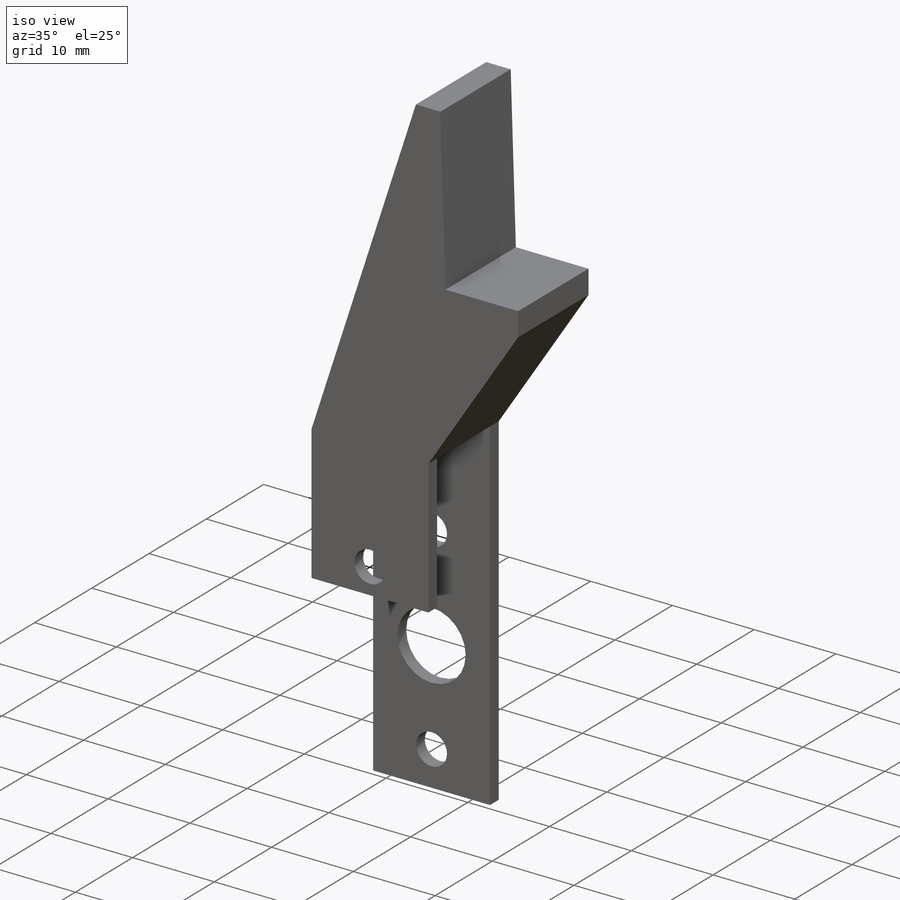
[diagram: iso view]
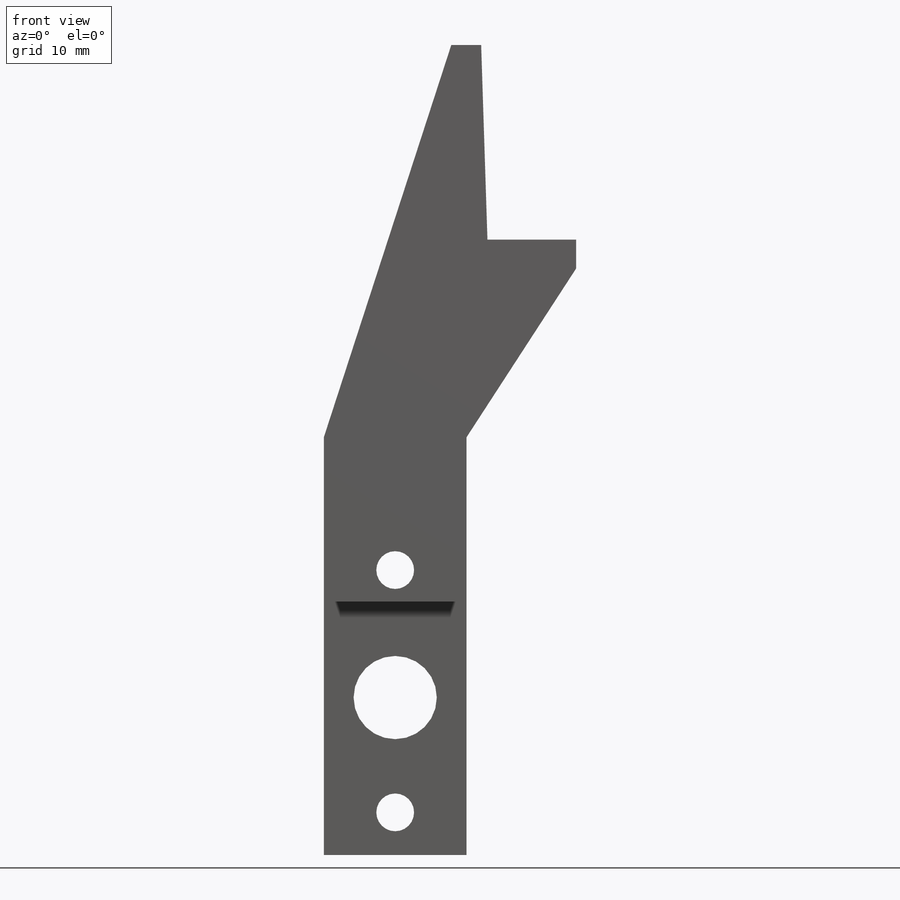
[diagram: front view]
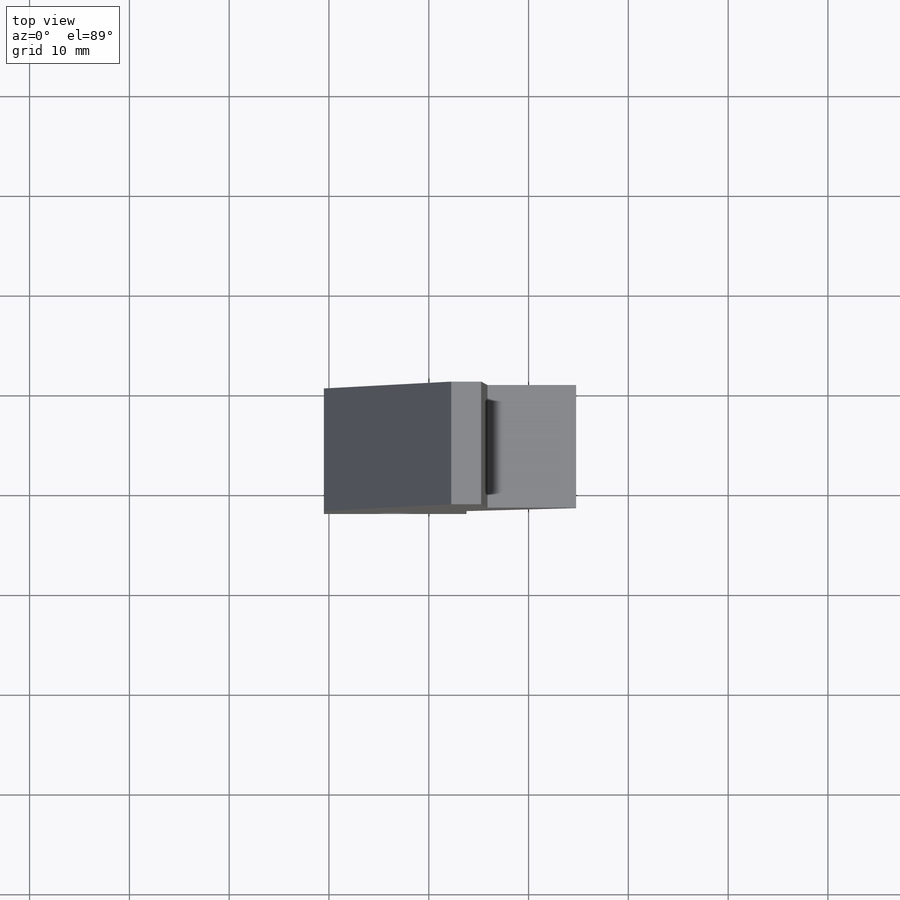
[diagram: top view]
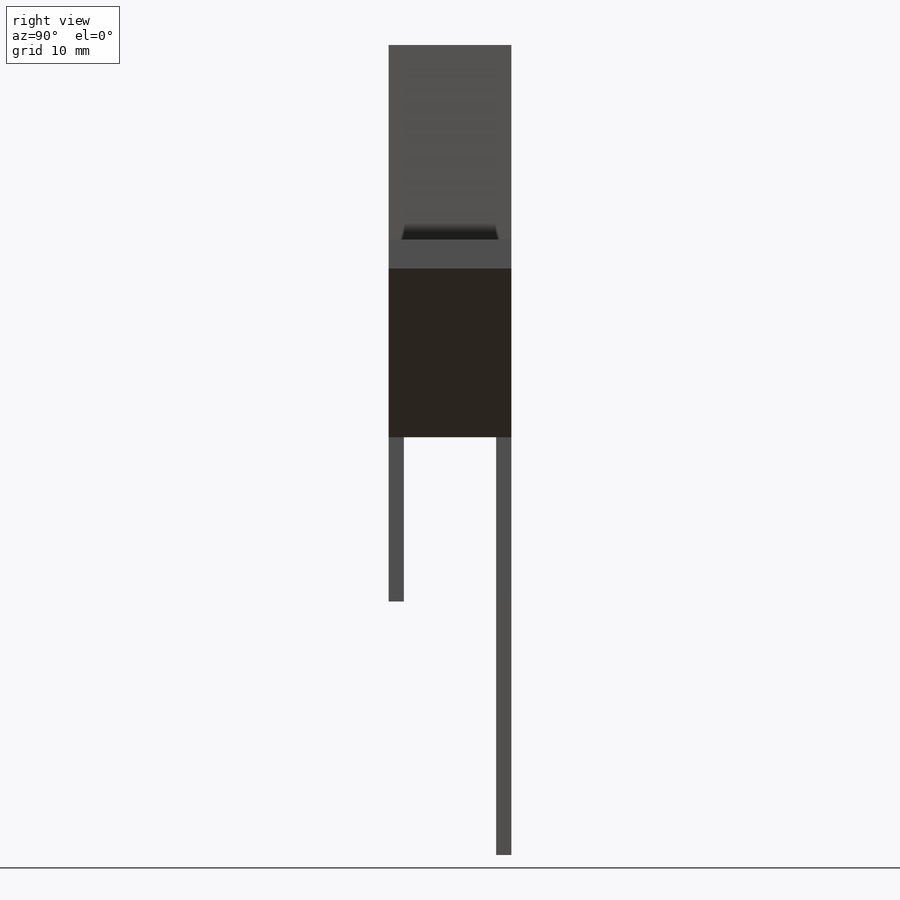
[diagram: right view]
SOLIDWORKS PART (.sldprt)
format: sldprt  version: not decoded by parser v0  size: 155,648 bytes
history: native  units: mm
features: sketch x3, cut_extrude x2, material x1, extrude x1 (+12 scaffold rows collapsed)
feature tree (19):
  scaffold x12  (default folders/planes/origin — collapsed)
  material  "Material <not specified>"
  sketch  "Sketch1"  dims[c1.D1=41.8592mm c2.D1=180.0deg c3.D1=20.1676mm c4.D1=90.0deg c5.D1=41.3258mm c6.D1=90.0deg c7.D1=15.6972mm c8.D1=89.0deg c9.D1=41.3258mm c10.D1=72.0deg c11.D1=9.3472mm c12.D1=91.85deg]
  extrude  "Boss-Extrude3"  Depth=12.2936mm
  sketch  "Sketch2"  dims[D1=16.4592mm]
  cut_extrude  "Cut-Extrude3"  Depth=14.3002mm
  sketch  "Sketch3"  dims[D1=12.7762mm]
  cut_extrude  "Cut-Extrude4"  Depth=14.3002mm
decode coverage: 6 of 6 modeling features carry decoded parameters
note: suppression state not decoded; provenance and decode notes live in map.json
